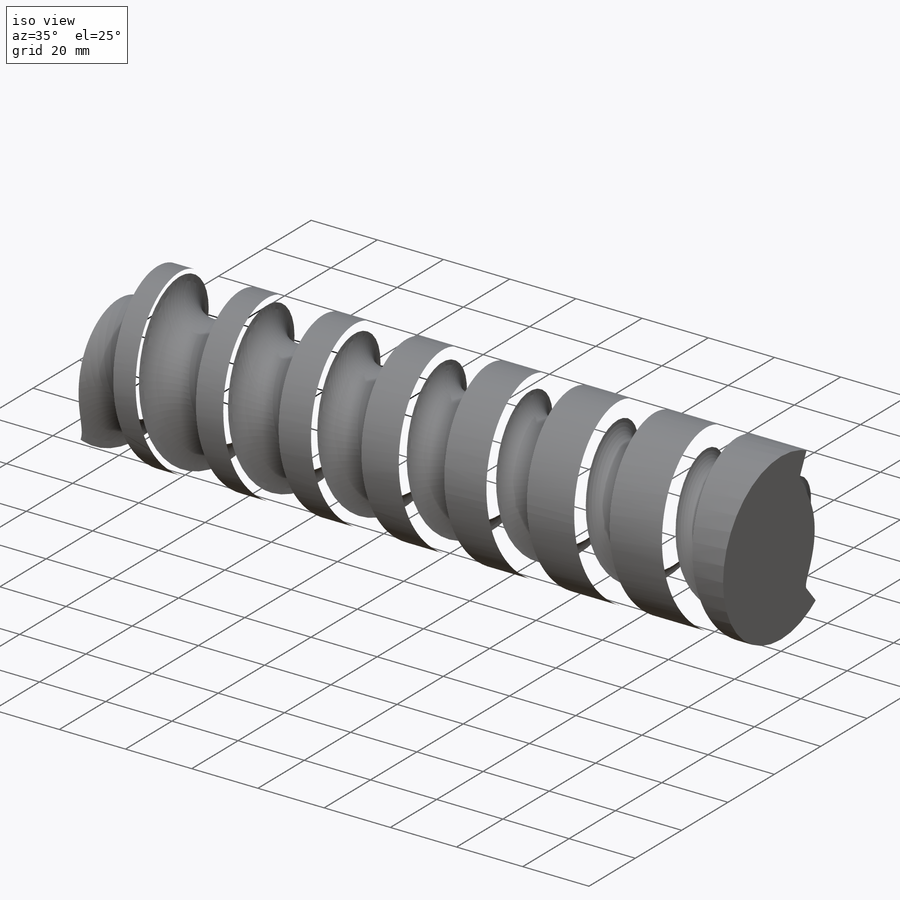
[diagram: iso view]
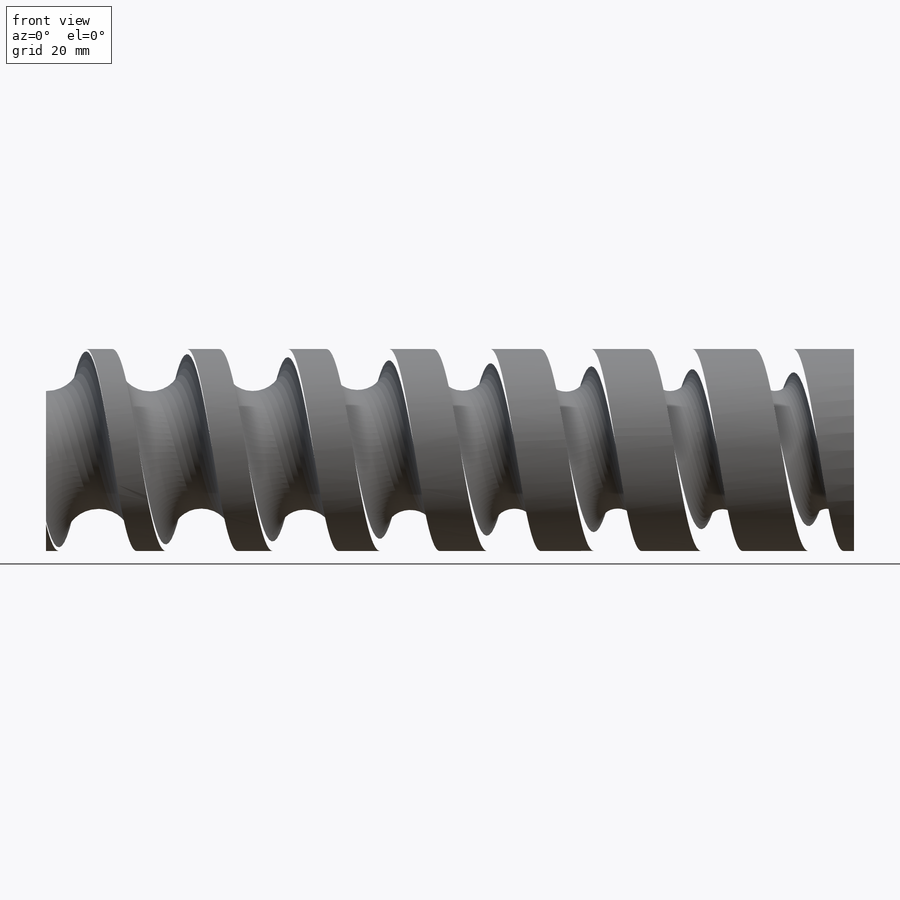
[diagram: front view]
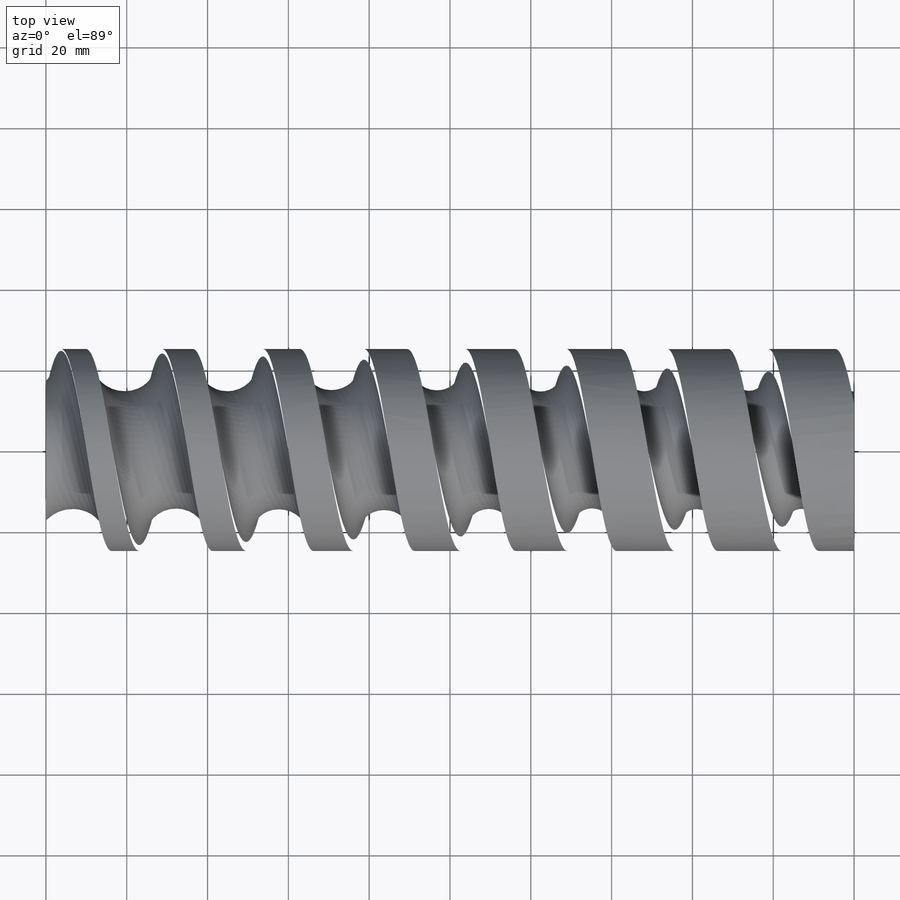
[diagram: top view]
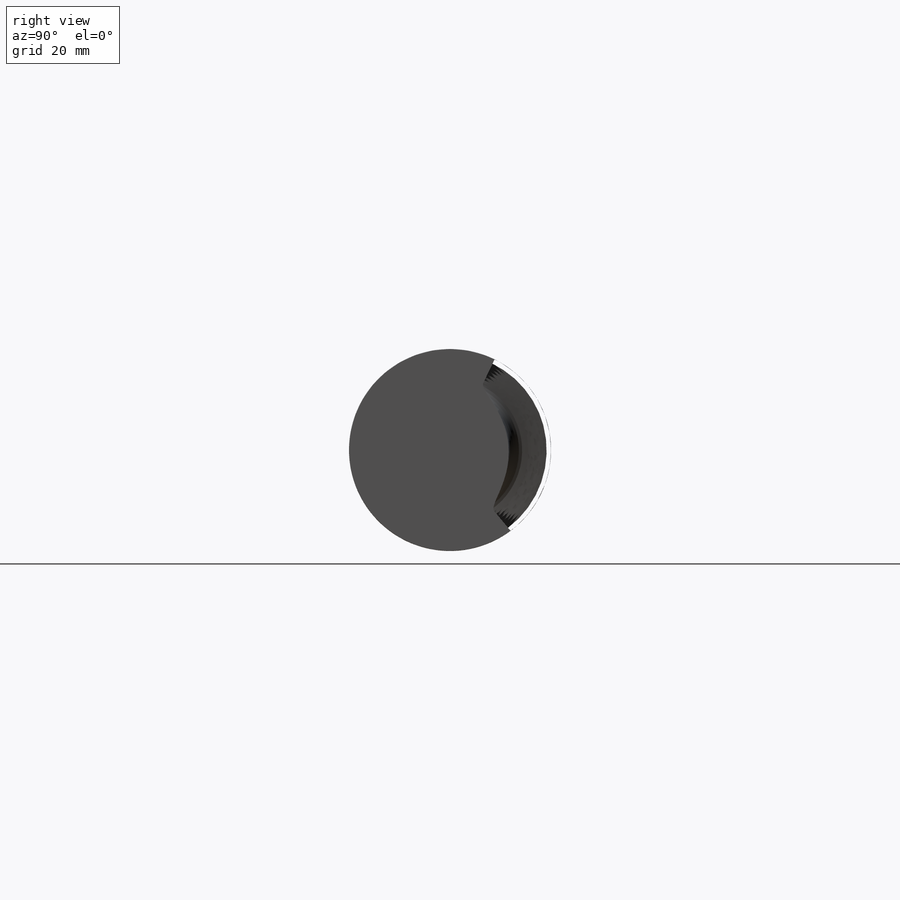
[diagram: right view]
SOLIDWORKS PART (.sldprt)
format: sldprt  version: not decoded by parser v0  size: 2,394,624 bytes
history: native  units: mm
features: sketch x6, plane x5, material x1, extrude x1, helix x1, sweep x1 (+9 scaffold rows collapsed)
feature tree (24):
  scaffold x9  (default folders/planes/origin — collapsed)
  material  "Material <nicht festgelegt>"
  plane  "Vorderansicht-XY"
  plane  "Draufsicht-ZX"
  plane  "Seitenansicht-YZ"
  sketch  "Skizze1"  dims[D1=50.0mm]
  extrude  "Aufsatz-Linear austragen1"  Depth=200mm
  plane  "Ebene1"  Offset=10mm
  plane  "Ebene2"  Offset=2mm
  sketch  "Skizze2"  dims[D1=53.0mm]
  helix  "Spirale/Helix1"  Pitch=230mm
  sketch  "3D-Skizze1"
  sketch  "Skizze3"  dims[D1=53.0mm Spirale/Helix2=0.0 D3=243.8mm D4=26.5mm D5=9200.0mm D7=91.0deg]
  sketch  "3D-Skizze2"
  sketch  "Skizze4"  dims[D1=12.0mm]
  sweep  "Schnitt-Austragung1"
decode coverage: 6 of 9 modeling features carry decoded parameters
note: suppression state not decoded; provenance and decode notes live in map.json
